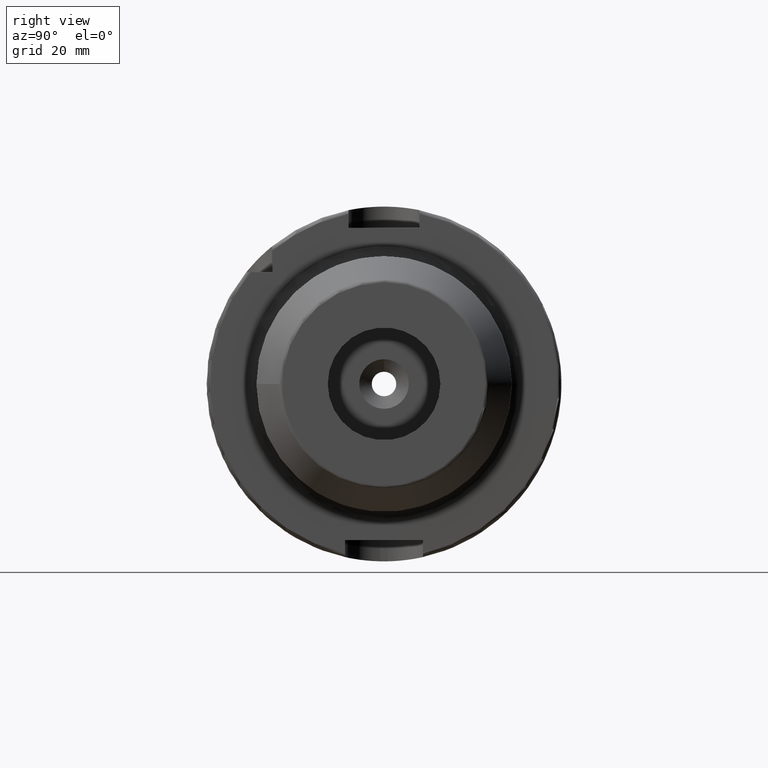
[diagram: clean part render]
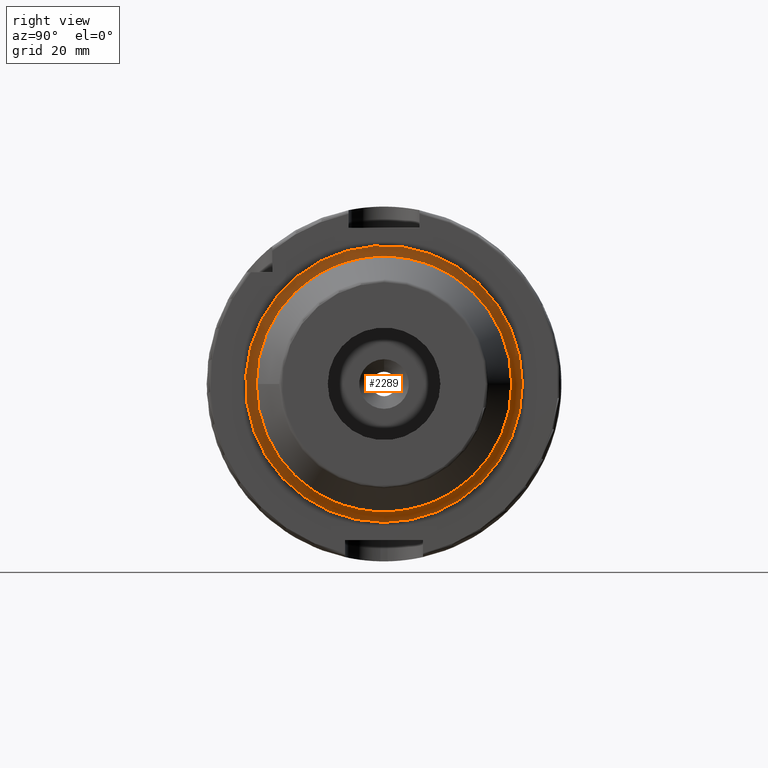
[diagram: same view with one face highlighted and labeled with its STEP entity id]
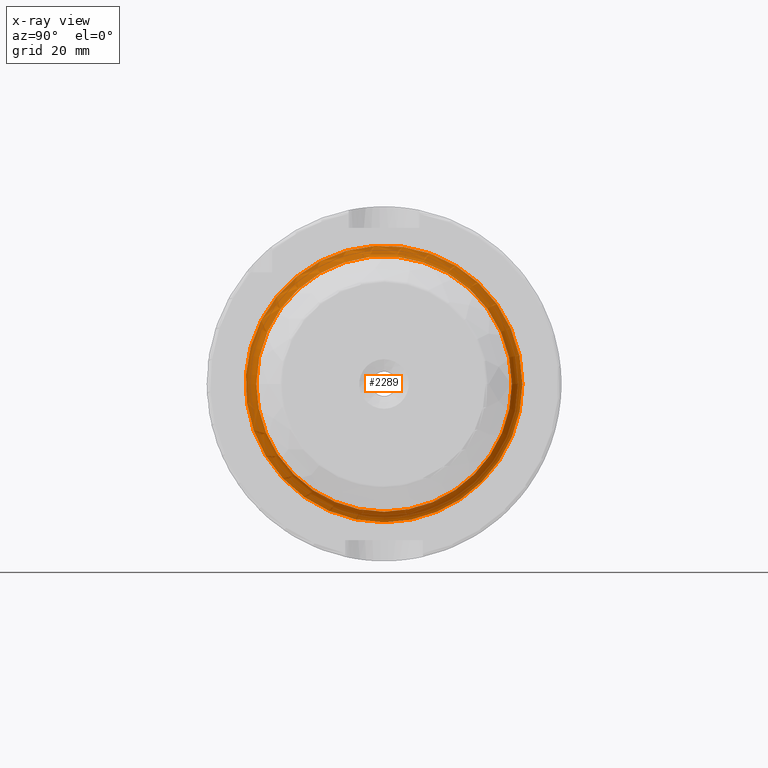
[diagram: x-ray of the same camera — body ghosted, the highlighted face saturated]
A machine part, right view. The second image highlights one B-rep face of the part: STEP entity #2289.
The next image is the same camera in x-ray: the body ghosted, the highlighted face saturated — about 2% of this face is hidden behind the body in this view.
In plain terms, the highlighted toroidal blend (fillet) surface has major radius 39 mm and minor (blend) radius 3 mm.
Its self-contained STEP definition (entity closure, byte-faithful):
#427=FACE_OUTER_BOUND('',#552,.T.);
#552=EDGE_LOOP('',(#1595,#1596,#1597,#1598,#1599,#1600,#1601));
#704=CIRCLE('',#2460,36.);
#705=CIRCLE('',#2461,36.);
#706=CIRCLE('',#2462,36.);
#719=CIRCLE('',#2480,3.);
#720=CIRCLE('',#2481,39.);
#721=CIRCLE('',#2482,39.);
#890=VERTEX_POINT('',#3563);
#891=VERTEX_POINT('',#3565);
#892=VERTEX_POINT('',#3567);
#903=VERTEX_POINT('',#3598);
#904=VERTEX_POINT('',#3600);
#1157=EDGE_CURVE('',#891,#890,#704,.T.);
#1158=EDGE_CURVE('',#892,#891,#705,.T.);
#1159=EDGE_CURVE('',#890,#892,#706,.T.);
#1173=EDGE_CURVE('',#891,#903,#719,.T.);
#1174=EDGE_CURVE('',#903,#904,#720,.T.);
#1175=EDGE_CURVE('',#904,#903,#721,.T.);
#1595=ORIENTED_EDGE('',*,*,#1158,.T.);
#1596=ORIENTED_EDGE('',*,*,#1173,.T.);
#1597=ORIENTED_EDGE('',*,*,#1174,.T.);
#1598=ORIENTED_EDGE('',*,*,#1175,.T.);
#1599=ORIENTED_EDGE('',*,*,#1173,.F.);
#1600=ORIENTED_EDGE('',*,*,#1157,.T.);
#1601=ORIENTED_EDGE('',*,*,#1159,.T.);
#2252=TOROIDAL_SURFACE('',#2479,39.,3.);
#2289=ADVANCED_FACE('',(#427),#2252,.F.);
#2460=AXIS2_PLACEMENT_3D('',#3566,#2827,#2828);
#2461=AXIS2_PLACEMENT_3D('',#3568,#2829,#2830);
#2462=AXIS2_PLACEMENT_3D('',#3569,#2831,#2832);
#2479=AXIS2_PLACEMENT_3D('',#3597,#2866,#2867);
#2480=AXIS2_PLACEMENT_3D('',#3599,#2868,#2869);
#2481=AXIS2_PLACEMENT_3D('',#3601,#2870,#2871);
#2482=AXIS2_PLACEMENT_3D('',#3602,#2872,#2873);
#2827=DIRECTION('center_axis',(-1.,0.,0.));
#2828=DIRECTION('ref_axis',(0.,-1.,-1.22464679914735E-16));
#2829=DIRECTION('center_axis',(-1.,0.,0.));
#2830=DIRECTION('ref_axis',(0.,-1.,-1.22464679914735E-16));
#2831=DIRECTION('center_axis',(-1.,0.,0.));
#2832=DIRECTION('ref_axis',(0.,-1.,-1.22464679914735E-16));
#2866=DIRECTION('center_axis',(-1.,0.,0.));
#2867=DIRECTION('ref_axis',(0.,0.,1.));
#2868=DIRECTION('center_axis',(0.,-1.,1.22464679914735E-16));
#2869=DIRECTION('ref_axis',(0.,-1.22464679914735E-16,-1.));
#2870=DIRECTION('center_axis',(1.,0.,0.));
#2871=DIRECTION('ref_axis',(0.,-1.,-1.22464679914735E-16));
#2872=DIRECTION('center_axis',(1.,0.,0.));
#2873=DIRECTION('ref_axis',(0.,-1.,-1.22464679914735E-16));
#3563=CARTESIAN_POINT('',(32.,-36.,-4.40872847693047E-15));
#3565=CARTESIAN_POINT('',(32.,-4.40872847693047E-15,-36.));
#3566=CARTESIAN_POINT('Origin',(32.,0.,0.));
#3567=CARTESIAN_POINT('',(32.,36.,0.));
#3568=CARTESIAN_POINT('Origin',(32.,0.,0.));
#3569=CARTESIAN_POINT('Origin',(32.,0.,0.));
#3597=CARTESIAN_POINT('Origin',(32.,0.,0.));
#3598=CARTESIAN_POINT('',(29.,-4.77612251667468E-15,-39.));
#3599=CARTESIAN_POINT('Origin',(32.,-4.77612251667468E-15,-39.));
#3600=CARTESIAN_POINT('',(29.,39.,9.55224503334935E-15));
#3601=CARTESIAN_POINT('Origin',(29.,0.,0.));
#3602=CARTESIAN_POINT('Origin',(29.,0.,0.));